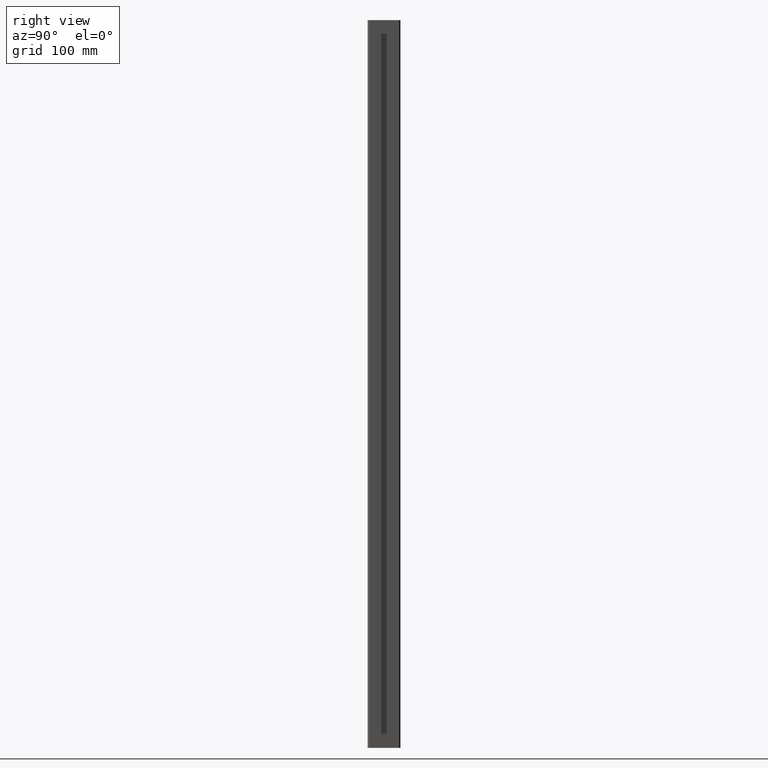
[diagram: clean part render]
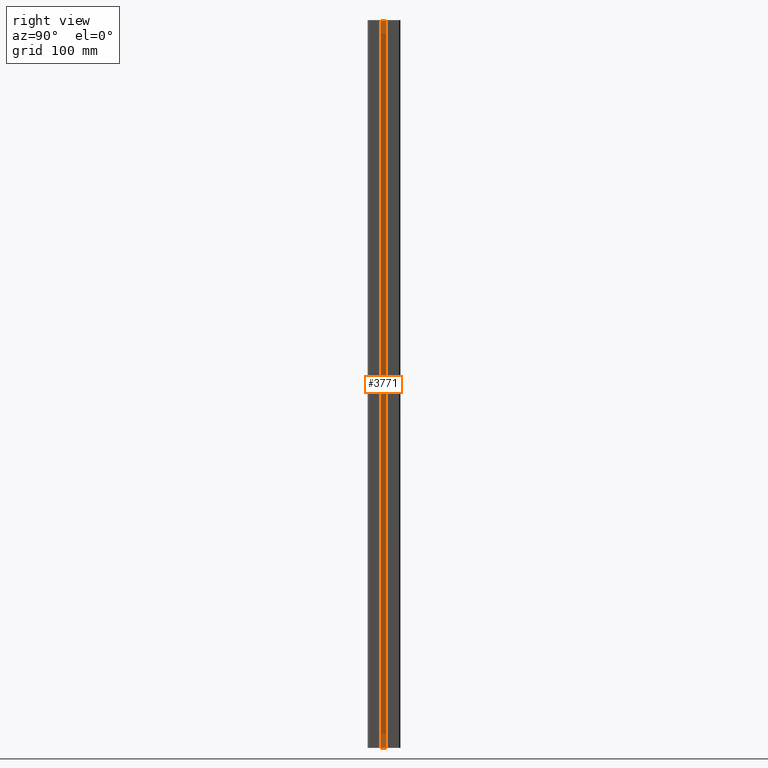
[diagram: same view with one face highlighted and labeled with its STEP entity id]
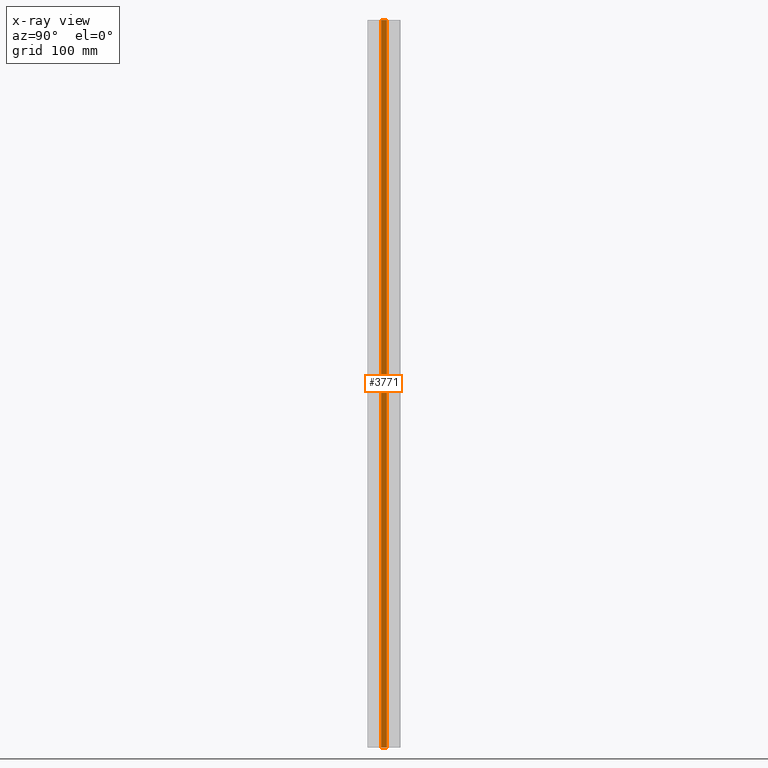
[diagram: x-ray of the same camera — body ghosted, the highlighted face saturated]
A machine part, right view. The second image highlights one B-rep face of the part: STEP entity #3771.
The next image is the same camera in x-ray: the body ghosted, the highlighted face saturated — about 0% of this face is hidden behind the body in this view.
In plain terms, the highlighted planar face has unit normal (1, 0, 0).
Its self-contained STEP definition (entity closure, byte-faithful):
#123=PLANE('',#4154);
#305=FACE_OUTER_BOUND('',#507,.T.);
#507=EDGE_LOOP('',(#3455,#3456,#3457,#3458));
#674=LINE('',#5762,#1060);
#720=LINE('',#5919,#1106);
#893=LINE('',#6367,#1279);
#894=LINE('',#6369,#1280);
#1060=VECTOR('',#4585,10.);
#1106=VECTOR('',#4725,10.);
#1279=VECTOR('',#5234,10.);
#1280=VECTOR('',#5237,10.);
#1664=VERTEX_POINT('',#5759);
#1665=VERTEX_POINT('',#5761);
#1728=VERTEX_POINT('',#5916);
#1729=VERTEX_POINT('',#5918);
#2072=EDGE_CURVE('',#1665,#1664,#674,.T.);
#2156=EDGE_CURVE('',#1728,#1729,#720,.T.);
#2381=EDGE_CURVE('',#1664,#1729,#893,.T.);
#2382=EDGE_CURVE('',#1665,#1728,#894,.T.);
#3455=ORIENTED_EDGE('',*,*,#2072,.T.);
#3456=ORIENTED_EDGE('',*,*,#2381,.T.);
#3457=ORIENTED_EDGE('',*,*,#2156,.F.);
#3458=ORIENTED_EDGE('',*,*,#2382,.F.);
#3771=ADVANCED_FACE('',(#305),#123,.T.);
#4154=AXIS2_PLACEMENT_3D('',#6368,#5235,#5236);
#4585=DIRECTION('',(0.,1.,0.));
#4725=DIRECTION('',(0.,1.,0.));
#5234=DIRECTION('',(0.,0.,1.));
#5235=DIRECTION('center_axis',(1.,0.,0.));
#5236=DIRECTION('ref_axis',(0.,1.,0.));
#5237=DIRECTION('',(0.,0.,1.));
#5759=CARTESIAN_POINT('',(29.25,3.95,0.));
#5761=CARTESIAN_POINT('',(29.25,-3.95,0.));
#5762=CARTESIAN_POINT('',(29.25,-3.95,0.));
#5916=CARTESIAN_POINT('',(29.25,-3.95,1000.));
#5918=CARTESIAN_POINT('',(29.25,3.95,1000.));
#5919=CARTESIAN_POINT('',(29.25,-3.95,1000.));
#6367=CARTESIAN_POINT('',(29.25,3.95,0.));
#6368=CARTESIAN_POINT('Origin',(29.25,-3.95,0.));
#6369=CARTESIAN_POINT('',(29.25,-3.95,0.));